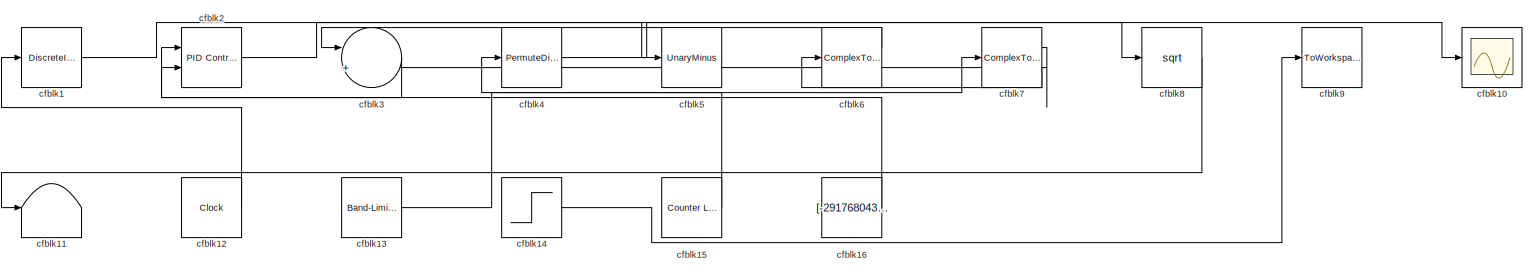
[diagram: root canvas - part 1/1, most of the canvas]
MODEL slx_32b71e62f42f
KIND model
CONFIG AbsTol = auto
CONFIG EnableMultiTasking = off
CONFIG FixedStep = auto
CONFIG MaxStep = auto
CONFIG MinStep = auto
CONFIG RelTol = 1e-3
CONFIG SampleTimeConstraint = Unconstrained
CONFIG SolverName = VariableStepAuto
CONFIG StartTime = 0.0
CONFIG StopTime = 10.0
BLOCK [DiscreteIntegrator] cfblk1
  ICPrevOutput = DiscIntNeverNeededParam
  ICPrevScaledInput = DiscIntNeverNeededParam
  InitialConditionSetting = Auto
  Ports = [1, 1]
BLOCK [Scope] cfblk10
  Floating = off
  NumInputPorts = 1
  Ports = [1]
BLOCK [Terminator] cfblk11
BLOCK [Clock] cfblk12
BLOCK [Reference] cfblk13  REF=simulink/Sources/Band-Limited
White Noise
  Ports = [0, 1]
  SourceBlock = simulink/Sources/Band-Limited\nWhite Noise
  SourceProductBaseCode = SL
  SourceType = Band-Limited White Noise.
BLOCK [Step] cfblk14
  After = [-381161262.718365]
  Before = [417332055.851727]
  SampleTime = 0
  Time = [35.000000]
BLOCK [Reference] cfblk15  REF=simulink/Sources/Counter
Limited
  Ports = [0, 1]
  SourceBlock = simulink/Sources/Counter\nLimited
  SourceProductBaseCode = SL
  SourceType = Counter Limited
BLOCK [Constant] cfblk16
  SampleTime = 1
  Value = [-291768043.731137]
BLOCK [Reference] cfblk2  REF=slpidlib/PID Controller (2DOF)
  Ports = [2, 1]
  SourceBlock = slpidlib/PID Controller (2DOF)
  SourceProductBaseCode = SL
  SourceType = PID 2dof
BLOCK [Sum] cfblk3
  Inputs = |++
  Ports = [2, 1]
BLOCK [PermuteDimensions] cfblk4
BLOCK [UnaryMinus] cfblk5
BLOCK [ComplexToRealImag] cfblk6
  Ports = [1, 2]
BLOCK [ComplexToRealImag] cfblk7
  Ports = [1, 2]
BLOCK [Sqrt] cfblk8
BLOCK [ToWorkspace] cfblk9
  FixptAsFi = on
  MaxDataPoints = inf
  Ports = [1]
  SampleTime = -1
  SaveFormat = Timeseries
  VariableName = ctobdkx
LINE cfblk12:1 -> cfblk1:1
LINE cfblk13:1 -> cfblk7:1
LINE cfblk14:1 -> cfblk9:1
LINE cfblk15:1 -> cfblk4:1
LINE cfblk16:1 -> cfblk2:1
LINE cfblk1:1 -> cfblk5:1
LINE cfblk2:1 -> cfblk8:1
LINE cfblk3:1 -> cfblk2:2
LINE cfblk4:1 -> cfblk10:1
LINE cfblk6:1 -> cfblk3:1
LINE cfblk7:1 -> cfblk3:2
LINE cfblk7:2 -> cfblk6:1
LINE cfblk8:1 -> cfblk11:1
